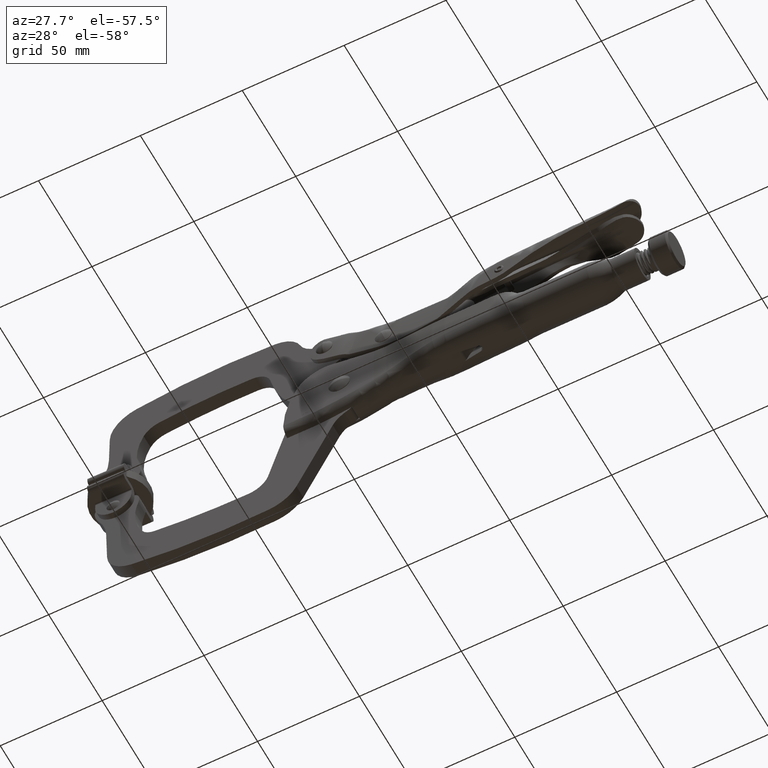
[diagram: clean part render]
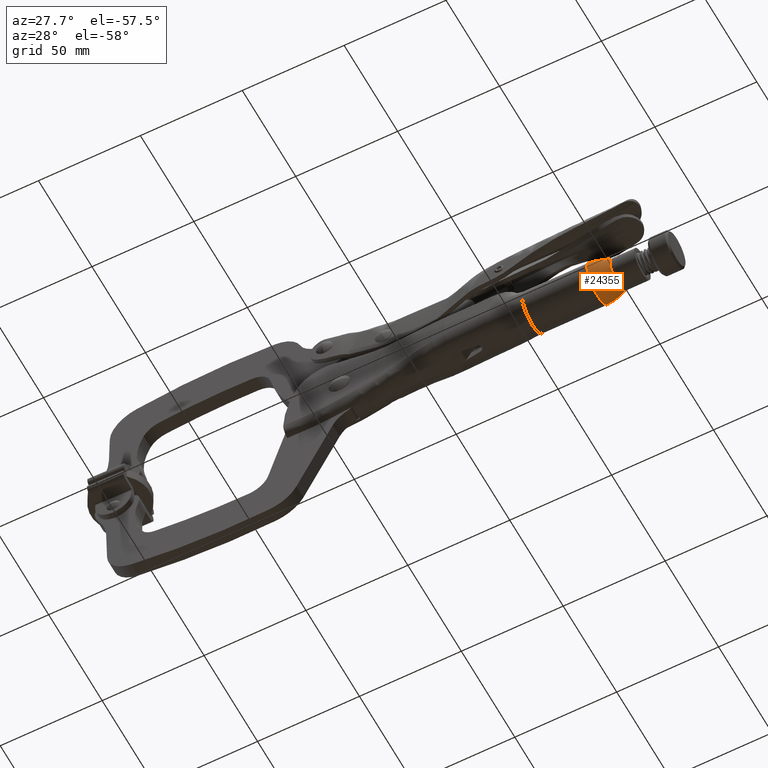
[diagram: same view with one face highlighted and labeled with its STEP entity id]
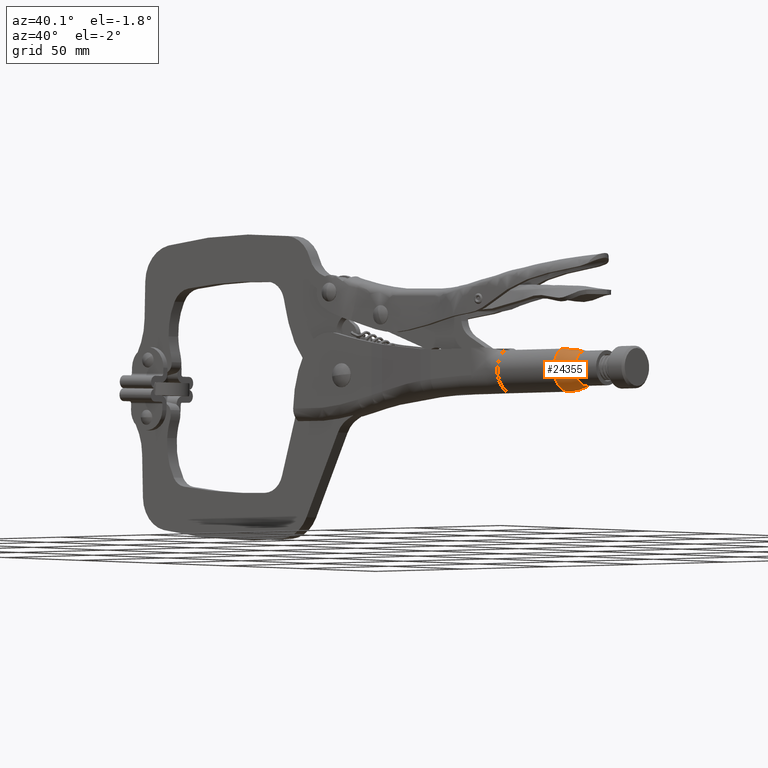
[diagram: same view with one face highlighted and labeled with its STEP entity id]
A machine part, auxiliary view. The second image highlights one B-rep face of the part: STEP entity #24355.
A second angle (auxiliary view) of the same face is appended — the face is thin or edge-on in the first view.
In plain terms, the highlighted face is a freeform B-spline surface patch.
Its self-contained STEP definition (entity closure, byte-faithful):
#152 = CARTESIAN_POINT ( 'NONE',  ( 78.02204641913058900, -4.616761854343328000, 4.506787936265500800 ) ) ;
#191 = CARTESIAN_POINT ( 'NONE',  ( 74.91372081149855000, 8.508709059635348700, -5.641099918945207600 ) ) ;
#406 = CARTESIAN_POINT ( 'NONE',  ( 78.02204641913074600, 9.920352828873127700, 4.506787936265499000 ) ) ;
#592 = VERTEX_POINT ( 'NONE', #8088 ) ;
#618 = CARTESIAN_POINT ( 'NONE',  ( 78.02204641913093000, 2.701795487264931200, 9.195956889359802500 ) ) ;
#625 = CARTESIAN_POINT ( 'NONE',  ( 68.02204641913095900, 7.754735816134157700, 10.14612028979769500 ) ) ;
#751 = CARTESIAN_POINT ( 'NONE',  ( 68.02204641913095900, 10.94599640020213400, 7.236930861635720200 ) ) ;
#968 = CARTESIAN_POINT ( 'NONE',  ( 68.02204641913094500, 3.737656320296363500, -8.453879710202306400 ) ) ;
#991 = ORIENTED_EDGE ( 'NONE', *, *, #29681, .F. ) ;
#1180 = CARTESIAN_POINT ( 'NONE',  ( 68.02204641913095900, -6.214314342678192400, 6.297034963005099700 ) ) ;
#4326 = CARTESIAN_POINT ( 'NONE',  ( 71.68252304651417700, -2.451144841604286900, 10.14655861342015400 ) ) ;
#4526 = CARTESIAN_POINT ( 'NONE',  ( 71.59814433860034900, -6.780350221271628900, 5.371840023249415500 ) ) ;
#4730 = CARTESIAN_POINT ( 'NONE',  ( 74.92144672666725600, -5.189957674297697400, -3.172721022954390100 ) ) ;
#4896 = CARTESIAN_POINT ( 'NONE',  ( 78.02204641913070300, 9.920352828873149100, 4.506787936265478600 ) ) ;
#4938 = CARTESIAN_POINT ( 'NONE',  ( 78.02204641913093000, 1.652496185063573800, -6.103879710202309500 ) ) ;
#5114 = CARTESIAN_POINT ( 'NONE',  ( 78.02204641913064600, -0.4024318798723035600, 8.777107985383947800 ) ) ;
#5153 = CARTESIAN_POINT ( 'NONE',  ( 68.02204641913064600, 11.09527172826574000, -4.139110555909469200 ) ) ;
#5369 = CARTESIAN_POINT ( 'NONE',  ( 71.59814433860023500, 12.08394119580179200, 5.371840023248707600 ) ) ;
#5584 = CARTESIAN_POINT ( 'NONE',  ( 75.00494603550916400, 5.228265651699545400, 9.309378955952290400 ) ) ;
#5719 = CARTESIAN_POINT ( 'NONE',  ( 68.02204641913095900, 12.33100504852976100, 4.283271366708026700 ) ) ;
#5935 = CARTESIAN_POINT ( 'NONE',  ( 68.02204641913095900, 0.4802765938230168500, -8.275468148135166400 ) ) ;
#6143 = CARTESIAN_POINT ( 'NONE',  ( 68.02204641913097300, -4.227608734443453600, 8.884573212795315200 ) ) ;
#8088 = CARTESIAN_POINT ( 'NONE',  ( 68.02204641913095900, -2.451144841604288700, 10.14612028979769100 ) ) ;
#8972 = B_SPLINE_SURFACE_WITH_KNOTS ( 'NONE', 3, 3, ( 
 ( #29040, #4326, #9375, #43914 ),
 ( #14377, #48853, #19321, #53786 ),
 ( #24267, #58720, #29245, #63660 ),
 ( #34185, #4526, #39172, #9577 ),
 ( #44115, #14588, #49063, #19519 ),
 ( #53994, #24486, #58932, #29452 ),
 ( #63873, #34394, #4730, #39384 ),
 ( #9795, #44321, #14792, #49275 ),
 ( #19722, #54193, #24703, #59143 ),
 ( #29666, #64076, #34604, #4938 ),
 ( #39589, #10002, #44531, #14997 ),
 ( #49481, #19937, #54408, #24906 ),
 ( #59354, #29877, #191, #34815 ),
 ( #5153, #39798, #10216, #44735 ),
 ( #15207, #49679, #20146, #54615 ),
 ( #25120, #59560, #30081, #406 ),
 ( #35030, #5369, #40005, #10432 ),
 ( #44948, #15426, #49896, #20354 ),
 ( #54832, #25335, #59775, #30294 ),
 ( #625, #35248, #5584, #40213 ) ),
 .UNSPECIFIED., .F., .F., .F.,
 ( 4, 1, 1, 1, 1, 1, 1, 1, 2, 1, 1, 1, 1, 1, 1, 1, 4 ),
 ( 4, 4 ),
 ( 0.4455074126920131100, 0.4801631993987622900, 0.5148189861055115800, 0.5494747728122607600, 0.5841305595190098300, 0.6187863462257590100, 0.6534421329325081900, 0.6880979196392573700, 0.7227537063460065500, 0.7574094930527558400, 0.7920652797595050300, 0.8267210664662542100, 0.8613768531730033900, 0.8960326398797525700, 0.9306884265865017500, 0.9653442132932509300, 1.000000000000000000 ),
 ( 0.0000000000000000000, 1.000000000000000000 ),
 .UNSPECIFIED. ) ;
#9282 = B_SPLINE_CURVE_WITH_KNOTS ( 'NONE', 3,
 ( #54959, #25462, #30423, #751, #35380, #5719, #40351, #10776, #45285, #15769, #50239, #20690, #55166, #25670, #60111, #30635, #968, #35592, #5935, #40570, #10989, #45499, #15990, #50443, #20898, #55377, #25893, #60320, #30848, #1180, #35809, #6143, #40788, #11201 ),
 .UNSPECIFIED., .F., .F.,
 ( 4, 2, 2, 2, 2, 2, 2, 2, 2, 2, 2, 2, 2, 2, 2, 2, 4 ),
 ( 0.0000000000000000000, 0.06250000000000001400, 0.1250000000000000300, 0.1875000000000000600, 0.2500000000000000600, 0.3125000000000000600, 0.3750000000000001100, 0.4375000000000001100, 0.5000000000000000000, 0.5625000000000000000, 0.6250000000000000000, 0.6875000000000000000, 0.7500000000000000000, 0.8125000000000001100, 0.8750000000000001100, 0.9375000000000001100, 1.000000000000000000 ),
 .UNSPECIFIED. ) ;
#9375 = CARTESIAN_POINT ( 'NONE',  ( 75.00494603550916400, 0.07532532283032605800, 9.309378955952288600 ) ) ;
#9577 = CARTESIAN_POINT ( 'NONE',  ( 78.02204641913110100, -2.935198261017473200, 7.058862633907156500 ) ) ;
#9591 = VERTEX_POINT ( 'NONE', #47704 ) ;
#9795 = CARTESIAN_POINT ( 'NONE',  ( 68.02204641913098700, -3.524580273824571700, -6.544937582861435600 ) ) ;
#9964 = CARTESIAN_POINT ( 'NONE',  ( 78.02204641913058900, 9.891825569389091300, -1.482647087509305600 ) ) ;
#10002 = CARTESIAN_POINT ( 'NONE',  ( 71.48981991220735200, 3.737685946426833700, -8.434461342467464800 ) ) ;
#10177 = CARTESIAN_POINT ( 'NONE',  ( 78.02204641913093000, 2.601795487264935600, 9.195956889359802500 ) ) ;
#10216 = CARTESIAN_POINT ( 'NONE',  ( 74.92144672666705700, 10.49354864882743000, -3.172721022954482900 ) ) ;
#10432 = CARTESIAN_POINT ( 'NONE',  ( 78.02204641913112900, 8.238789235547404400, 7.058862633907160100 ) ) ;
#10776 = CARTESIAN_POINT ( 'NONE',  ( 68.02204641913094500, 12.69792226456056900, 1.041709224083114100 ) ) ;
#10989 = CARTESIAN_POINT ( 'NONE',  ( 68.02204641913095900, -2.548695557993486000, -7.063989270300751900 ) ) ;
#11201 = CARTESIAN_POINT ( 'NONE',  ( 68.02204641913095900, -2.451144841604288700, 10.14612028979769100 ) ) ;
#14327 = CARTESIAN_POINT ( 'NONE',  ( 68.02204641913095900, -2.451144841604288700, 10.14612028979769100 ) ) ;
#14377 = CARTESIAN_POINT ( 'NONE',  ( 68.02204641913095900, -3.381258558678218200, 9.594223220345247300 ) ) ;
#14588 = CARTESIAN_POINT ( 'NONE',  ( 71.56477793446706000, -7.508882651778807600, 2.152615821554874300 ) ) ;
#14792 = CARTESIAN_POINT ( 'NONE',  ( 74.91372081149835100, -3.205118085105257600, -5.641099918945331900 ) ) ;
#14961 = CARTESIAN_POINT ( 'NONE',  ( 78.02204641913058900, 5.648250159900606500, -5.707743588804751400 ) ) ;
#14997 = CARTESIAN_POINT ( 'NONE',  ( 78.02204641913093000, 3.651094789466305300, -6.103879710202309500 ) ) ;
#15207 = CARTESIAN_POINT ( 'NONE',  ( 68.02204641913104400, 12.47164501684583900, -1.133880020934441100 ) ) ;
#15426 = CARTESIAN_POINT ( 'NONE',  ( 71.63680116679400100, 10.36629644922702200, 8.185599370825434200 ) ) ;
#15769 = CARTESIAN_POINT ( 'NONE',  ( 68.02204641913095900, 12.00815447599523500, -2.146797286146481500 ) ) ;
#15990 = CARTESIAN_POINT ( 'NONE',  ( 68.02204641913095900, -5.030662776875975500, -4.946870451643777100 ) ) ;
#19321 = CARTESIAN_POINT ( 'NONE',  ( 74.99732572222251300, -0.8912871855861135300, 9.030151918526051700 ) ) ;
#19519 = CARTESIAN_POINT ( 'NONE',  ( 78.02204641913063200, -4.616761854343310200, 4.506787936265521200 ) ) ;
#19722 = CARTESIAN_POINT ( 'NONE',  ( 68.02204641913084500, -0.6066940905666996500, -8.097261429083998200 ) ) ;
#19898 = CARTESIAN_POINT ( 'NONE',  ( 78.02204641913088800, 1.652496185063573100, -6.103879710202328100 ) ) ;
#19937 = CARTESIAN_POINT ( 'NONE',  ( 71.48956285734145400, 5.910285065096382500, -8.101908792907393000 ) ) ;
#20146 = CARTESIAN_POINT ( 'NONE',  ( 74.93232396011883600, 11.48578028224684500, -0.1743147428906969300 ) ) ;
#20354 = CARTESIAN_POINT ( 'NONE',  ( 78.02204641913080300, 5.706022854402139200, 8.777107985383947800 ) ) ;
#20690 = CARTESIAN_POINT ( 'NONE',  ( 68.02204641913097300, 10.33425375140586200, -4.946870451643763800 ) ) ;
#20898 = CARTESIAN_POINT ( 'NONE',  ( 68.02204641913095900, -6.704563501465361100, -2.146797286146484100 ) ) ;
#21303 = CARTESIAN_POINT ( 'NONE',  ( 68.02204641913095900, 7.754735816134156900, 10.14612028979769500 ) ) ;
#22864 = ORIENTED_EDGE ( 'NONE', *, *, #40838, .T. ) ;
#23058 = CARTESIAN_POINT ( 'NONE',  ( 75.00494603550916400, 5.228265651699545400, 9.309378955952290400 ) ) ;
#24267 = CARTESIAN_POINT ( 'NONE',  ( 68.02204641913084500, -5.062705474697239100, 8.185162794261403400 ) ) ;
#24355 = ADVANCED_FACE ( 'NONE', ( #40147 ), #8972, .T. ) ;
#24486 = CARTESIAN_POINT ( 'NONE',  ( 71.53727889573302400, -7.168054042315771000, -1.133343862033088000 ) ) ;
#24663 = CARTESIAN_POINT ( 'NONE',  ( 78.02204641913093000, 2.701795487264931200, 9.195956889359802500 ) ) ;
#24703 = CARTESIAN_POINT ( 'NONE',  ( 74.90846594092282400, -0.4756766379688023300, -7.266704986293688300 ) ) ;
#24866 = CARTESIAN_POINT ( 'NONE',  ( 78.02204641913122900, -2.885655896386190500, -4.015305693446919100 ) ) ;
#24906 = CARTESIAN_POINT ( 'NONE',  ( 78.02204641913063200, 5.648250159900603900, -5.707743588804732800 ) ) ;
#25120 = CARTESIAN_POINT ( 'NONE',  ( 68.02204641913084500, 12.81247362630854000, 2.152203703811264900 ) ) ;
#25335 = CARTESIAN_POINT ( 'NONE',  ( 71.66728241994083200, 8.684849533208062400, 9.594660961614900800 ) ) ;
#25462 = CARTESIAN_POINT ( 'NONE',  ( 68.02204641913095900, 8.688576132541177400, 9.592011986156141000 ) ) ;
#25670 = CARTESIAN_POINT ( 'NONE',  ( 68.02204641913097300, 7.852286532523368800, -7.063989270300747400 ) ) ;
#25893 = CARTESIAN_POINT ( 'NONE',  ( 68.02204641913095900, -7.394331290030694800, 1.041709224083102500 ) ) ;
#26297 = CARTESIAN_POINT ( 'NONE',  ( 78.02204641913093000, 2.601795487264935600, 9.195956889359802500 ) ) ;
#26587 = EDGE_LOOP ( 'NONE', ( #22864, #30394, #991, #57004 ) ) ;
#26975 = VERTEX_POINT ( 'NONE', #618 ) ;
#27754 = B_SPLINE_CURVE_WITH_KNOTS ( 'NONE', 3,
 ( #53530, #38910, #43863, #14327 ),
 .UNSPECIFIED., .F., .F.,
 ( 4, 4 ),
 ( 0.0000000000000000000, 1.000000000000000000 ),
 .UNSPECIFIED. ) ;
#29040 = CARTESIAN_POINT ( 'NONE',  ( 68.02204641913095900, -2.451144841604286900, 10.14612028979769100 ) ) ;
#29245 = CARTESIAN_POINT ( 'NONE',  ( 74.98208509564877000, -2.732568677284821200, 8.119474882666837700 ) ) ;
#29452 = CARTESIAN_POINT ( 'NONE',  ( 78.02204641913127100, -5.196324573117976800, 1.508471967127347400 ) ) ;
#29666 = CARTESIAN_POINT ( 'NONE',  ( 68.02204641913095900, 1.565934662431161600, -8.453879710202308200 ) ) ;
#29681 = EDGE_CURVE ( 'NONE', #9591, #592, #9282, .T. ) ;
#29836 = CARTESIAN_POINT ( 'NONE',  ( 78.02204641913122900, -5.196324573117990100, 1.508471967127326600 ) ) ;
#29877 = CARTESIAN_POINT ( 'NONE',  ( 71.50007259849256500, 8.828171248354575300, -6.543136553568152700 ) ) ;
#30081 = CARTESIAN_POINT ( 'NONE',  ( 74.94607347948533500, 11.36641322759082900, 2.967823083472876700 ) ) ;
#30143 = B_SPLINE_CURVE_WITH_KNOTS ( 'NONE', 3,
 ( #24663, #54155, #64034, #34564, #4896, #39549, #9964, #44491, #14961, #49442, #19898, #54362, #24866, #59314, #29836, #152, #34775, #5114, #39759, #10177 ),
 .UNSPECIFIED., .F., .F.,
 ( 4, 1, 1, 1, 1, 1, 1, 1, 2, 1, 1, 1, 1, 1, 1, 1, 4 ),
 ( 0.0000000000000000000, 0.06249999999999979900, 0.1249999999999998100, 0.1874999999999998100, 0.2499999999999998100, 0.3124999999999997800, 0.3749999999999997800, 0.4374999999999997800, 0.5000000000000000000, 0.5625000000000000000, 0.6250000000000000000, 0.6875000000000000000, 0.7500000000000000000, 0.8124999999999997800, 0.8749999999999997800, 0.9375000000000000000, 1.000000000000000000 ),
 .UNSPECIFIED. ) ;
#30294 = CARTESIAN_POINT ( 'NONE',  ( 78.02204641913093000, 3.704906787023830800, 9.189400466312699600 ) ) ;
#30394 = ORIENTED_EDGE ( 'NONE', *, *, #37550, .T. ) ;
#30423 = CARTESIAN_POINT ( 'NONE',  ( 68.02204641913095900, 9.531199708973320000, 8.884573212795325900 ) ) ;
#30635 = CARTESIAN_POINT ( 'NONE',  ( 68.02204641913094500, 4.823314380706870400, -8.275468148135162800 ) ) ;
#30848 = CARTESIAN_POINT ( 'NONE',  ( 68.02204641913095900, -7.027414073999880300, 4.283271366708020400 ) ) ;
#34185 = CARTESIAN_POINT ( 'NONE',  ( 68.02204641913098700, -6.780350221271802100, 5.371394711392299300 ) ) ;
#34199 = EDGE_CURVE ( 'NONE', #9591, #26975, #56608, .T. ) ;
#34394 = CARTESIAN_POINT ( 'NONE',  ( 71.51552442883068700, -5.791680753736137900, -4.139037367524141900 ) ) ;
#34564 = CARTESIAN_POINT ( 'NONE',  ( 78.02204641913108700, 8.238789235547431000, 7.058862633907145000 ) ) ;
#34604 = CARTESIAN_POINT ( 'NONE',  ( 74.90859446835581500, 1.609207707535136100, -7.631049321772552600 ) ) ;
#34775 = CARTESIAN_POINT ( 'NONE',  ( 78.02204641913105800, -2.935198261017496700, 7.058862633907141400 ) ) ;
#34815 = CARTESIAN_POINT ( 'NONE',  ( 78.02204641913138500, 8.189246870916120400, -4.015305693446882700 ) ) ;
#35030 = CARTESIAN_POINT ( 'NONE',  ( 68.02204641913095900, 12.08394119580169200, 5.371394711392310800 ) ) ;
#35248 = CARTESIAN_POINT ( 'NONE',  ( 71.68252304651417700, 7.754735816134157700, 10.14655861342015800 ) ) ;
#35380 = CARTESIAN_POINT ( 'NONE',  ( 68.02204641913095900, 11.51790531720806300, 6.297034963005105900 ) ) ;
#35592 = CARTESIAN_POINT ( 'NONE',  ( 68.02204641913095900, 1.565934654233525300, -8.453879710202310000 ) ) ;
#35809 = CARTESIAN_POINT ( 'NONE',  ( 68.02204641913095900, -5.642405425672263800, 7.236930861635710400 ) ) ;
#37550 = EDGE_CURVE ( 'NONE', #46538, #592, #27754, .T. ) ;
#38910 = CARTESIAN_POINT ( 'NONE',  ( 75.00494603550916400, 0.07532532283032605800, 9.309378955952288600 ) ) ;
#39172 = CARTESIAN_POINT ( 'NONE',  ( 74.96275668155233500, -4.857774241144548800, 5.853472533140596600 ) ) ;
#39384 = CARTESIAN_POINT ( 'NONE',  ( 78.02204641913063200, -4.588234594859254200, -1.482647087509257900 ) ) ;
#39549 = CARTESIAN_POINT ( 'NONE',  ( 78.02204641913103000, 10.49991554764792800, 1.508471967127320600 ) ) ;
#39589 = CARTESIAN_POINT ( 'NONE',  ( 68.02204641913095900, 3.737656312098715600, -8.453879710202308200 ) ) ;
#39759 = CARTESIAN_POINT ( 'NONE',  ( 78.02204641913088800, 1.598684187506006700, 9.189400466312699600 ) ) ;
#39798 = CARTESIAN_POINT ( 'NONE',  ( 71.51552442883030400, 11.09527172826577900, -4.139037367524301700 ) ) ;
#40005 = CARTESIAN_POINT ( 'NONE',  ( 74.96275668155227800, 10.16136521567459800, 5.853472533140244000 ) ) ;
#40147 = FACE_OUTER_BOUND ( 'NONE', #26587, .T. ) ;
#40213 = CARTESIAN_POINT ( 'NONE',  ( 78.02204641913093000, 2.701795487264934800, 9.195956889359802500 ) ) ;
#40351 = CARTESIAN_POINT ( 'NONE',  ( 68.02204641913095900, 12.57204402537374200, 3.209779717343416800 ) ) ;
#40570 = CARTESIAN_POINT ( 'NONE',  ( 68.02204641913094500, -1.577230620762287500, -7.580458035420131000 ) ) ;
#40788 = CARTESIAN_POINT ( 'NONE',  ( 68.02204641913094500, -3.384985158011307900, 9.592011986156133900 ) ) ;
#40838 = EDGE_CURVE ( 'NONE', #26975, #46538, #30143, .T. ) ;
#43863 = CARTESIAN_POINT ( 'NONE',  ( 71.68252304651417700, -2.451144841604286900, 10.14655861342015400 ) ) ;
#43914 = CARTESIAN_POINT ( 'NONE',  ( 78.02204641913093000, 2.601795487264935600, 9.195956889359802500 ) ) ;
#44115 = CARTESIAN_POINT ( 'NONE',  ( 68.02204641913125700, -7.508882651778703700, 2.152203703811241400 ) ) ;
#44321 = CARTESIAN_POINT ( 'NONE',  ( 71.50007259849225200, -3.524580273824328800, -6.543136553568383600 ) ) ;
#44491 = CARTESIAN_POINT ( 'NONE',  ( 78.02204641913134300, 8.189246870916125700, -4.015305693446900500 ) ) ;
#44531 = CARTESIAN_POINT ( 'NONE',  ( 74.90859446835577300, 3.694383266994685700, -7.631049321772576600 ) ) ;
#44735 = CARTESIAN_POINT ( 'NONE',  ( 78.02204641913063200, 9.891825569389080600, -1.482647087509284300 ) ) ;
#44948 = CARTESIAN_POINT ( 'NONE',  ( 68.02204641913107300, 10.36629644922709100, 8.185162794261408700 ) ) ;
#45285 = CARTESIAN_POINT ( 'NONE',  ( 68.02204641913095900, 12.58273802052055100, -0.05246475638730419000 ) ) ;
#45499 = CARTESIAN_POINT ( 'NONE',  ( 68.02204641913094500, -4.275572873765447900, -5.747072518520681700 ) ) ;
#46538 = VERTEX_POINT ( 'NONE', #26297 ) ;
#46782 = CARTESIAN_POINT ( 'NONE',  ( 71.68252304651417700, 7.754735816134157700, 10.14655861342015800 ) ) ;
#47704 = CARTESIAN_POINT ( 'NONE',  ( 68.02204641913095900, 7.754735816134156900, 10.14612028979769500 ) ) ;
#48853 = CARTESIAN_POINT ( 'NONE',  ( 71.66728241994080400, -3.381258558678263100, 9.594660961614785300 ) ) ;
#49063 = CARTESIAN_POINT ( 'NONE',  ( 74.94607347948544900, -6.062822253061058900, 2.967823083472508100 ) ) ;
#49275 = CARTESIAN_POINT ( 'NONE',  ( 78.02204641913127100, -2.885655896386186500, -4.015305693446900500 ) ) ;
#49442 = CARTESIAN_POINT ( 'NONE',  ( 78.02204641913088800, 3.651094789466305300, -6.103879710202328100 ) ) ;
#49481 = CARTESIAN_POINT ( 'NONE',  ( 68.02204641913084500, 5.910285065096591200, -8.097261429083978600 ) ) ;
#49679 = CARTESIAN_POINT ( 'NONE',  ( 71.53727889573335100, 12.47164501684577200, -1.133343862033356000 ) ) ;
#49896 = CARTESIAN_POINT ( 'NONE',  ( 74.98208509564902600, 8.036159651814580600, 8.119474882666999300 ) ) ;
#50239 = CARTESIAN_POINT ( 'NONE',  ( 68.02204641913095900, 11.54886247269547400, -3.146564741767254000 ) ) ;
#50443 = CARTESIAN_POINT ( 'NONE',  ( 68.02204641913094500, -6.245271498165587700, -3.146564741767267700 ) ) ;
#53530 = CARTESIAN_POINT ( 'NONE',  ( 78.02204641913093000, 2.601795487264935600, 9.195956889359802500 ) ) ;
#53786 = CARTESIAN_POINT ( 'NONE',  ( 78.02204641913093000, 1.598684187506038000, 9.189400466312699600 ) ) ;
#53994 = CARTESIAN_POINT ( 'NONE',  ( 68.02204641913056100, -7.168054042315909600, -1.133880020934440600 ) ) ;
#54155 = CARTESIAN_POINT ( 'NONE',  ( 78.02204641913088800, 3.704906787023861900, 9.189400466312699600 ) ) ;
#54193 = CARTESIAN_POINT ( 'NONE',  ( 71.48956285734159600, -0.6066940905668193300, -8.101908792907268600 ) ) ;
#54362 = CARTESIAN_POINT ( 'NONE',  ( 78.02204641913076000, -0.3446591853707869400, -5.707743588804745200 ) ) ;
#54408 = CARTESIAN_POINT ( 'NONE',  ( 74.90846594092265300, 5.779267612498492700, -7.266704986293754100 ) ) ;
#54615 = CARTESIAN_POINT ( 'NONE',  ( 78.02204641913107300, 10.49991554764791800, 1.508471967127341400 ) ) ;
#54832 = CARTESIAN_POINT ( 'NONE',  ( 68.02204641913095900, 8.684849533208090800, 9.594223220345249100 ) ) ;
#54959 = CARTESIAN_POINT ( 'NONE',  ( 68.02204641913095900, 7.754735816134156900, 10.14612028979769500 ) ) ;
#55166 = CARTESIAN_POINT ( 'NONE',  ( 68.02204641913094500, 9.579163848295332100, -5.747072518520674600 ) ) ;
#55377 = CARTESIAN_POINT ( 'NONE',  ( 68.02204641913095900, -7.279147045990674400, -0.05246475638730400300 ) ) ;
#56608 = B_SPLINE_CURVE_WITH_KNOTS ( 'NONE', 3,
 ( #21303, #46782, #23058, #57524 ),
 .UNSPECIFIED., .F., .F.,
 ( 4, 4 ),
 ( 0.0000000000000000000, 1.000000000000000000 ),
 .UNSPECIFIED. ) ;
#57004 = ORIENTED_EDGE ( 'NONE', *, *, #34199, .T. ) ;
#57524 = CARTESIAN_POINT ( 'NONE',  ( 78.02204641913093000, 2.701795487264931200, 9.195956889359802500 ) ) ;
#58720 = CARTESIAN_POINT ( 'NONE',  ( 71.63680116679363200, -5.062705474697367000, 8.185599370825102000 ) ) ;
#58932 = CARTESIAN_POINT ( 'NONE',  ( 74.93232396011873700, -6.182189307716872600, -0.1743147428905603400 ) ) ;
#59143 = CARTESIAN_POINT ( 'NONE',  ( 78.02204641913080300, -0.3446591853707853300, -5.707743588804726500 ) ) ;
#59314 = CARTESIAN_POINT ( 'NONE',  ( 78.02204641913058900, -4.588234594859261300, -1.482647087509279200 ) ) ;
#59354 = CARTESIAN_POINT ( 'NONE',  ( 68.02204641913114400, 8.828171248354472300, -6.544937582861454200 ) ) ;
#59560 = CARTESIAN_POINT ( 'NONE',  ( 71.56477793446671900, 12.81247362630852900, 2.152615821555633700 ) ) ;
#59775 = CARTESIAN_POINT ( 'NONE',  ( 74.99732572222251300, 6.194878160115948200, 9.030151918526112100 ) ) ;
#60111 = CARTESIAN_POINT ( 'NONE',  ( 68.02204641913095900, 6.880821595292174700, -7.580458035420126500 ) ) ;
#60320 = CARTESIAN_POINT ( 'NONE',  ( 68.02204641913095900, -7.268453050843867800, 3.209779717343406600 ) ) ;
#63660 = CARTESIAN_POINT ( 'NONE',  ( 78.02204641913068900, -0.4024318798722739700, 8.777107985383953100 ) ) ;
#63873 = CARTESIAN_POINT ( 'NONE',  ( 68.02204641913111500, -5.791680753735884800, -4.139110555909486100 ) ) ;
#64034 = CARTESIAN_POINT ( 'NONE',  ( 78.02204641913076000, 5.706022854402167600, 8.777107985383942400 ) ) ;
#64076 = CARTESIAN_POINT ( 'NONE',  ( 71.48981991220745200, 1.565905028102936100, -8.434461342467416900 ) ) ;